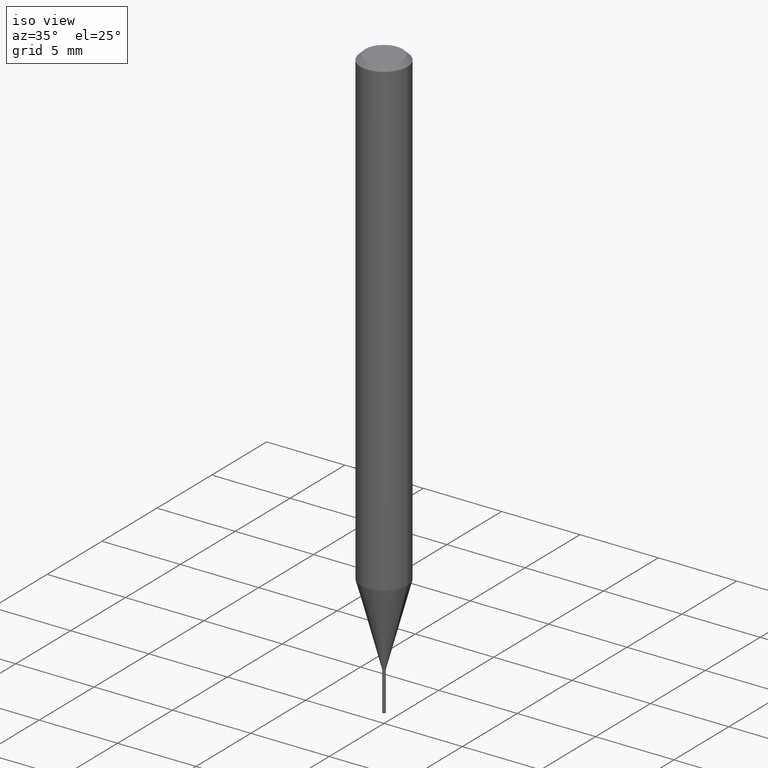
[diagram: clean part render]
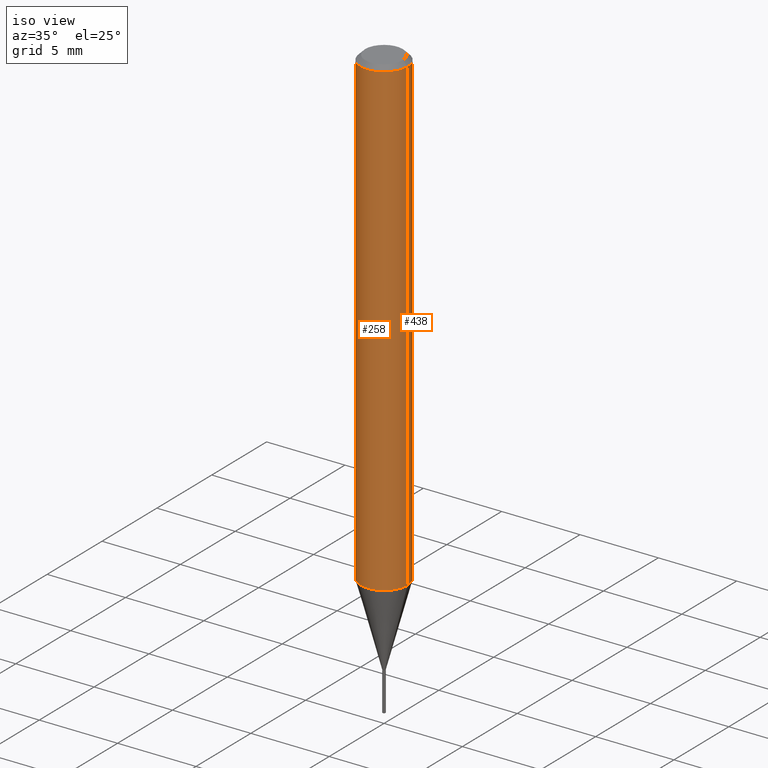
[diagram: same view with one multi-face feature highlighted, each face labeled with its STEP entity id]
A machine part, iso view. The highlighted faces form ONE feature: a constant-radius fillet chain: 2 tangent blend faces with common blend radius 1.4999 mm. The faces share edges in the B-rep.
Their STEP definitions:
[1] entity #258 (Cylinder):
#44 = CARTESIAN_POINT ( 'NONE',  ( 0.000000000000000000, 0.000000000000000000, 0.000000000000000000 ) ) ;
#49 = CARTESIAN_POINT ( 'NONE',  ( -0.05905000000000006771, 4.195754854663396409E-16, -2.904631170795525045E-30 ) ) ;
#53 = AXIS2_PLACEMENT_3D ( 'NONE', #434, #216, #363 ) ;
#98 = DIRECTION ( 'NONE',  ( 1.000000000000000000, -6.982962677686272233E-15, 0.000000000000000000 ) ) ;
#103 = VERTEX_POINT ( 'NONE', #486 ) ;
#122 = LINE ( 'NONE', #49, #337 ) ;
#130 = CARTESIAN_POINT ( 'NONE',  ( 2.908814666986231247E-29, -4.153016428689947803E-15, -1.189471180179926924 ) ) ;
#133 = EDGE_LOOP ( 'NONE', ( #221, #175, #173, #138 ) ) ;
#138 = ORIENTED_EDGE ( 'NONE', *, *, #353, .F. ) ;
#156 = CYLINDRICAL_SURFACE ( 'NONE', #383, 0.05905000000000006771 ) ;
#169 = DIRECTION ( 'NONE',  ( -2.445468806185136597E-29, 3.491481338843145583E-15, 1.000000000000000000 ) ) ;
#173 = ORIENTED_EDGE ( 'NONE', *, *, #315, .T. ) ;
#174 = CARTESIAN_POINT ( 'NONE',  ( -0.05904999999999999832, -1.677549926184502089E-15, -0.01181000000000007044 ) ) ;
#175 = ORIENTED_EDGE ( 'NONE', *, *, #332, .T. ) ;
#176 = EDGE_CURVE ( 'NONE', #180, #360, #122, .T. ) ;
#180 = VERTEX_POINT ( 'NONE', #356 ) ;
#187 = VECTOR ( 'NONE', #281, 39.37007874015748143 ) ;
#216 = DIRECTION ( 'NONE',  ( -2.445468806185136597E-29, 3.491481338843145583E-15, 1.000000000000000000 ) ) ;
#221 = ORIENTED_EDGE ( 'NONE', *, *, #176, .F. ) ;
#232 = FACE_OUTER_BOUND ( 'NONE', #133, .T. ) ;
#235 = AXIS2_PLACEMENT_3D ( 'NONE', #130, #169, #98 ) ;
#258 = ADVANCED_FACE ( 'NONE', ( #232 ), #156, .T. ) ;
#281 = DIRECTION ( 'NONE',  ( -2.445468806185136877E-29, 3.491481338843145188E-15, 1.000000000000000000 ) ) ;
#315 = EDGE_CURVE ( 'NONE', #103, #395, #473, .T. ) ;
#320 = DIRECTION ( 'NONE',  ( -2.445468806185136597E-29, 3.491481338843145583E-15, 1.000000000000000000 ) ) ;
#324 = CARTESIAN_POINT ( 'NONE',  ( 0.05904999999999999832, -4.535783407291118600E-16, -0.01181000000000007044 ) ) ;
#332 = EDGE_CURVE ( 'NONE', #180, #103, #423, .T. ) ;
#337 = VECTOR ( 'NONE', #421, 39.37007874015748143 ) ;
#353 = EDGE_CURVE ( 'NONE', #360, #395, #470, .T. ) ;
#356 = CARTESIAN_POINT ( 'NONE',  ( -0.05905000000000014404, -3.733440943223607521E-15, -1.189471180179926924 ) ) ;
#360 = VERTEX_POINT ( 'NONE', #174 ) ;
#363 = DIRECTION ( 'NONE',  ( 1.000000000000000000, -6.982962677686266711E-15, 0.000000000000000000 ) ) ;
#367 = DIRECTION ( 'NONE',  ( 1.000000000000000000, -6.982962677686266711E-15, 4.876176775795936353E-29 ) ) ;
#383 = AXIS2_PLACEMENT_3D ( 'NONE', #44, #320, #367 ) ;
#394 = CARTESIAN_POINT ( 'NONE',  ( 0.05905000000000006771, -4.123439461173745257E-16, 2.879382386107503723E-30 ) ) ;
#395 = VERTEX_POINT ( 'NONE', #324 ) ;
#421 = DIRECTION ( 'NONE',  ( -2.445468806185136877E-29, 3.491481338843145188E-15, 1.000000000000000000 ) ) ;
#423 = CIRCLE ( 'NONE', #235, 0.05905000000000014404 ) ;
#434 = CARTESIAN_POINT ( 'NONE',  ( 2.888098660104663766E-31, -4.123439461173779647E-17, -0.01181000000000007044 ) ) ;
#470 = CIRCLE ( 'NONE', #53, 0.05904999999999999832 ) ;
#473 = LINE ( 'NONE', #394, #187 ) ;
#486 = CARTESIAN_POINT ( 'NONE',  ( 0.05905000000000014404, -4.565360374807322723E-15, -1.189471180179926924 ) ) ;
[2] entity #438 (Cylinder):
#34 = CARTESIAN_POINT ( 'NONE',  ( 2.888098660104663766E-31, -4.123439461173779647E-17, -0.01181000000000007044 ) ) ;
#38 = AXIS2_PLACEMENT_3D ( 'NONE', #39, #225, #333 ) ;
#39 = CARTESIAN_POINT ( 'NONE',  ( 0.000000000000000000, 0.000000000000000000, 0.000000000000000000 ) ) ;
#45 = CIRCLE ( 'NONE', #489, 0.05905000000000014404 ) ;
#49 = CARTESIAN_POINT ( 'NONE',  ( -0.05905000000000006771, 4.195754854663396409E-16, -2.904631170795525045E-30 ) ) ;
#58 = ORIENTED_EDGE ( 'NONE', *, *, #315, .F. ) ;
#90 = EDGE_CURVE ( 'NONE', #395, #360, #479, .T. ) ;
#97 = ORIENTED_EDGE ( 'NONE', *, *, #176, .T. ) ;
#103 = VERTEX_POINT ( 'NONE', #486 ) ;
#105 = EDGE_CURVE ( 'NONE', #103, #180, #45, .T. ) ;
#116 = DIRECTION ( 'NONE',  ( 1.000000000000000000, -6.982962677686266711E-15, 0.000000000000000000 ) ) ;
#118 = DIRECTION ( 'NONE',  ( -2.445468806185136597E-29, 3.491481338843145583E-15, 1.000000000000000000 ) ) ;
#122 = LINE ( 'NONE', #49, #337 ) ;
#174 = CARTESIAN_POINT ( 'NONE',  ( -0.05904999999999999832, -1.677549926184502089E-15, -0.01181000000000007044 ) ) ;
#176 = EDGE_CURVE ( 'NONE', #180, #360, #122, .T. ) ;
#180 = VERTEX_POINT ( 'NONE', #356 ) ;
#184 = FACE_OUTER_BOUND ( 'NONE', #401, .T. ) ;
#187 = VECTOR ( 'NONE', #281, 39.37007874015748143 ) ;
#225 = DIRECTION ( 'NONE',  ( -2.445468806185136597E-29, 3.491481338843145583E-15, 1.000000000000000000 ) ) ;
#234 = DIRECTION ( 'NONE',  ( 1.000000000000000000, -6.982962677686272233E-15, 0.000000000000000000 ) ) ;
#263 = AXIS2_PLACEMENT_3D ( 'NONE', #34, #341, #116 ) ;
#281 = DIRECTION ( 'NONE',  ( -2.445468806185136877E-29, 3.491481338843145188E-15, 1.000000000000000000 ) ) ;
#293 = ORIENTED_EDGE ( 'NONE', *, *, #90, .F. ) ;
#315 = EDGE_CURVE ( 'NONE', #103, #395, #473, .T. ) ;
#324 = CARTESIAN_POINT ( 'NONE',  ( 0.05904999999999999832, -4.535783407291118600E-16, -0.01181000000000007044 ) ) ;
#333 = DIRECTION ( 'NONE',  ( 1.000000000000000000, -6.982962677686266711E-15, 4.876176775795936353E-29 ) ) ;
#337 = VECTOR ( 'NONE', #421, 39.37007874015748143 ) ;
#341 = DIRECTION ( 'NONE',  ( -2.445468806185136597E-29, 3.491481338843145583E-15, 1.000000000000000000 ) ) ;
#356 = CARTESIAN_POINT ( 'NONE',  ( -0.05905000000000014404, -3.733440943223607521E-15, -1.189471180179926924 ) ) ;
#360 = VERTEX_POINT ( 'NONE', #174 ) ;
#368 = ORIENTED_EDGE ( 'NONE', *, *, #105, .T. ) ;
#394 = CARTESIAN_POINT ( 'NONE',  ( 0.05905000000000006771, -4.123439461173745257E-16, 2.879382386107503723E-30 ) ) ;
#395 = VERTEX_POINT ( 'NONE', #324 ) ;
#401 = EDGE_LOOP ( 'NONE', ( #368, #97, #293, #58 ) ) ;
#415 = CYLINDRICAL_SURFACE ( 'NONE', #38, 0.05905000000000006771 ) ;
#421 = DIRECTION ( 'NONE',  ( -2.445468806185136877E-29, 3.491481338843145188E-15, 1.000000000000000000 ) ) ;
#438 = ADVANCED_FACE ( 'NONE', ( #184 ), #415, .T. ) ;
#459 = CARTESIAN_POINT ( 'NONE',  ( 2.908814666986231247E-29, -4.153016428689947803E-15, -1.189471180179926924 ) ) ;
#473 = LINE ( 'NONE', #394, #187 ) ;
#479 = CIRCLE ( 'NONE', #263, 0.05904999999999999832 ) ;
#486 = CARTESIAN_POINT ( 'NONE',  ( 0.05905000000000014404, -4.565360374807322723E-15, -1.189471180179926924 ) ) ;
#489 = AXIS2_PLACEMENT_3D ( 'NONE', #459, #118, #234 ) ;